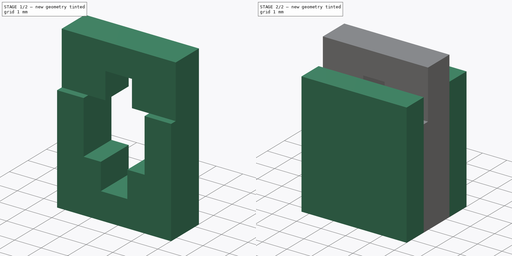
[diagram: build sequence overview — one tinted view per stage of 2, left to right]
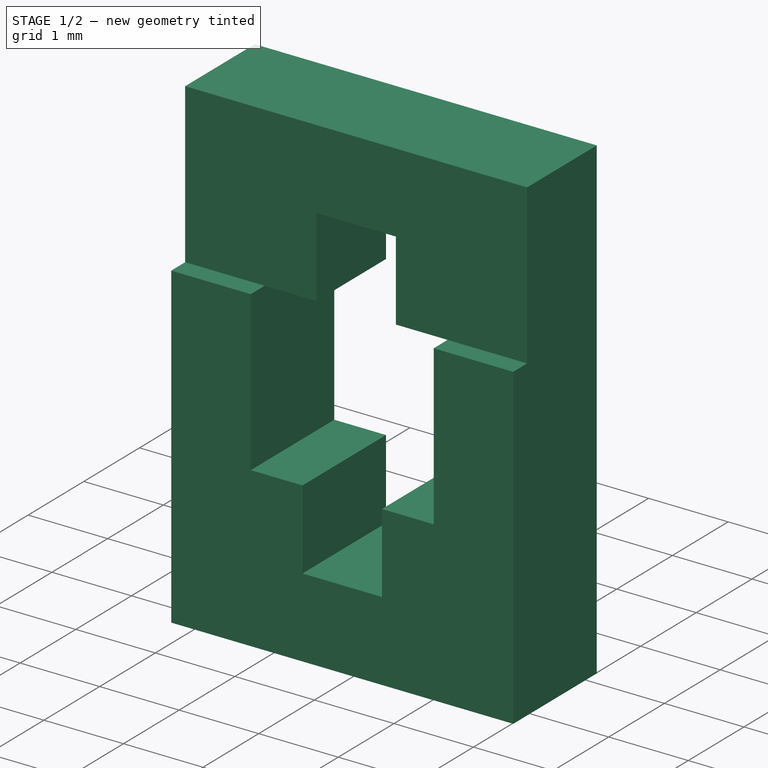
[diagram: stage 1 of 2 — iso view after this stage's code; geometry added in this stage tinted green]
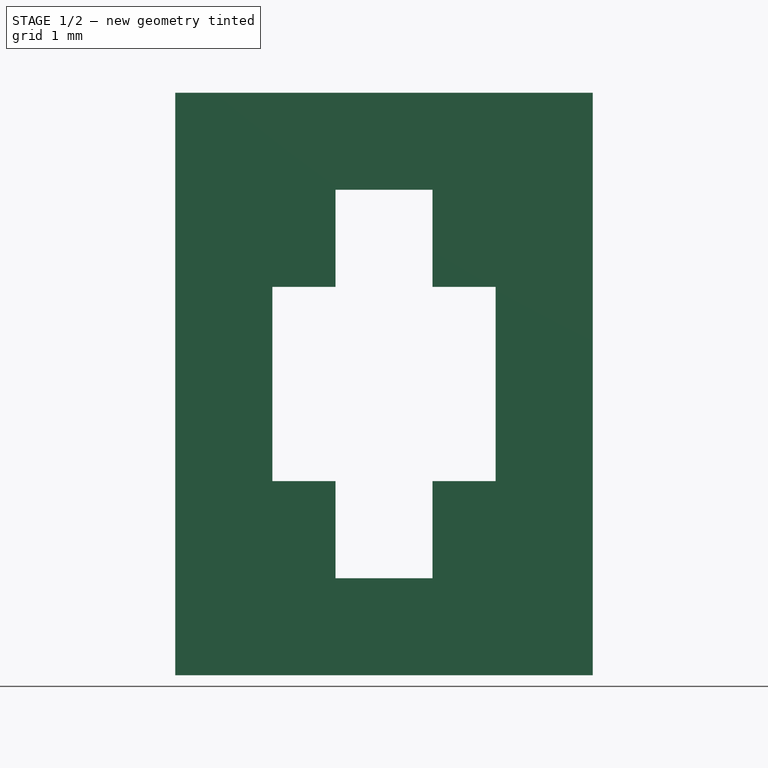
[diagram: stage 1 of 2 — front view after this stage's code; geometry added in this stage tinted green]
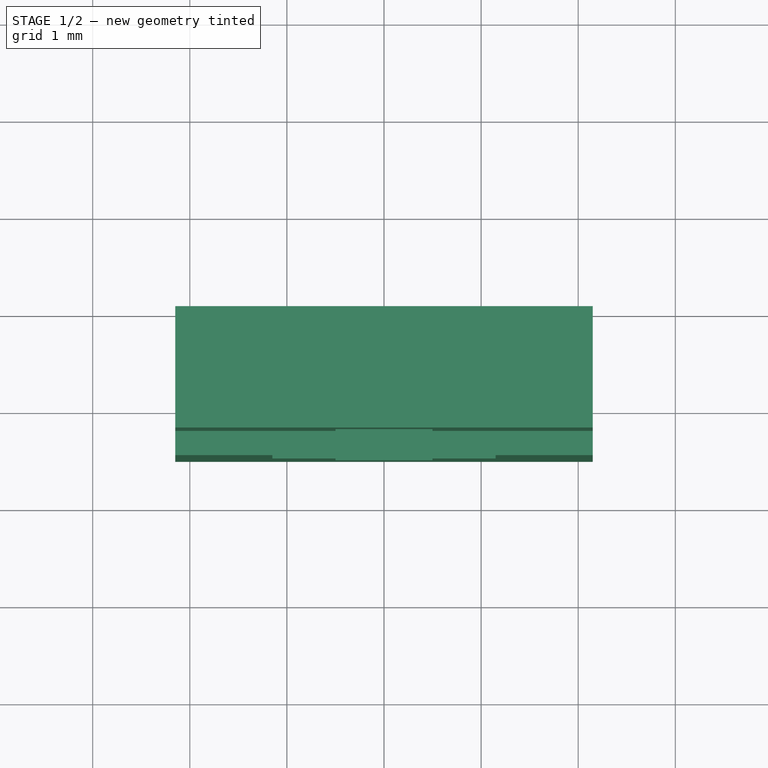
[diagram: stage 1 of 2 — top view after this stage's code; geometry added in this stage tinted green]
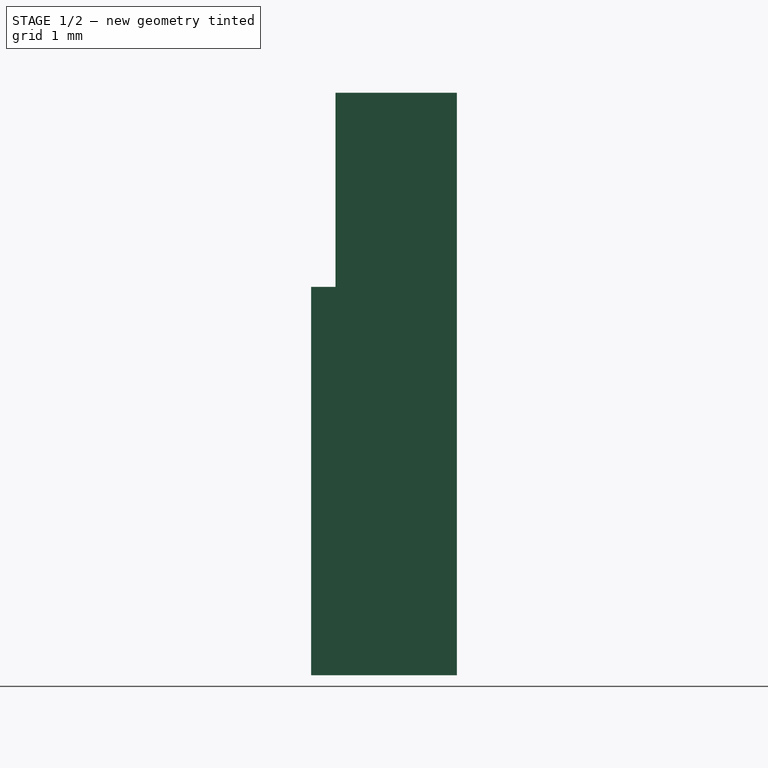
[diagram: stage 1 of 2 — right view after this stage's code; geometry added in this stage tinted green]
FCSTD DOCUMENT  (FreeCAD 0.20R29603 (Git))
Label: Miniarchive
License: All rights reserved
LicenseURL: http://en.wikipedia.org/wiki/All_rights_reserved
objects: Sketcher::SketchObject×4, PartDesign::Pad×4, PartDesign::Body×2
note: 14 computed .brp shape members not serialized (recipe doc carries the construction recipe); baked Part::Feature solids carry a one-line shape summary decoded from their .brp

FEATURE [Sketcher::SketchObject] Sketch
  FullyConstrained = true
  MapMode = 5
  Placement = pos=(0,0,0) rot=(1,0,0;1.5708rad)
  Support = -> [XZ_Plane]
  sketch-geometry (12):
    g0: LineSegment StartX=-2.15 StartY=4 StartZ=0 EndX=-2.15 EndY=0 EndZ=0
    g1: LineSegment StartX=-2.15 StartY=0 StartZ=0 EndX=2.15 EndY=0 EndZ=0
    g2: LineSegment StartX=2.15 StartY=0 StartZ=0 EndX=2.15 EndY=4 EndZ=0
    g3: LineSegment StartX=2.15 StartY=4 StartZ=0 EndX=1.15 EndY=4 EndZ=0
    g4: LineSegment StartX=1.15 StartY=4 StartZ=0 EndX=1.15 EndY=2 EndZ=0
    g5: LineSegment StartX=-1.15 StartY=2 StartZ=0 EndX=-1.15 EndY=4 EndZ=0
    g6: LineSegment StartX=-1.15 StartY=4 StartZ=0 EndX=-2.15 EndY=4 EndZ=0
    g7: LineSegment StartX=-1.15 StartY=2 StartZ=0 EndX=-0.5 EndY=2 EndZ=0
    g8: LineSegment StartX=-0.5 StartY=2 StartZ=0 EndX=-0.5 EndY=1 EndZ=0
    g9: LineSegment StartX=-0.5 StartY=1 StartZ=0 EndX=0.5 EndY=1 EndZ=0
    g10: LineSegment StartX=0.5 StartY=1 StartZ=0 EndX=0.5 EndY=2 EndZ=0
    g11: LineSegment StartX=0.5 StartY=2 StartZ=0 EndX=1.15 EndY=2 EndZ=0
  constraints (30):
    c: Coincident(g0,g1)
    c: Coincident(g1,g2)
    c: Coincident(g2,g3)
    c: Coincident(g3,g4)
    c: Coincident(g5,g6)
    c: Coincident(g6,g0)
    c: Coincident(g5,g7)
    c: Coincident(g7,g8)
    c: Coincident(g8,g9)
    c: Coincident(g9,g10)
    c: Coincident(g10,g11)
    c: Coincident(g11,g4)
    c: Horizontal(g7)
    c: Horizontal(g6)
    c: Vertical(g0)
    c: Vertical(g5)
    c: Vertical(g8)
    c: Symmetric(g5,g3,g-2)
    c: Symmetric(g0,g2,g-2)
    c: Symmetric(g5,g4,g-2)
    c: Symmetric(g7,g10,g-2)
    c: Symmetric(g8,g9,g-2)
    c: Symmetric(g0,g1,g-2)
    c: DistanceX(g6,g6) = 1
    c: DistanceX(g9,g9) = 1
    c: DistanceY(g5,g5) = 2
    c: DistanceY(g0,g0) = 4
    c: DistanceY(g10,g10) = 1
    c: PointOnObject(g0,g-1)
    c: DistanceX(g5,g3) = 2.3
FEATURE [PartDesign::Pad] Pad
  Direction = (0,-1,2e-16)
  Length = 1.5
  Length2 = 10
  Placement = pos=(0,0,0) rot=(1,0,0;1.5708rad)
  Profile = -> Sketch
  ReferenceAxis = -> Sketch [N_Axis]
  Type = 0
FEATURE [PartDesign::Body] Body
  Group = -> [Sketch,Pad,Sketch001,Pad001,Sketch002,Pad002]
  Origin = -> Origin
  Tip = -> Pad002
FEATURE [Sketcher::SketchObject] Sketch003
  FullyConstrained = true
  MapMode = 5
  Placement = pos=(0,0,0) rot=(1,0,0;1.5708rad)
  Support = -> [XZ_Plane001]
  sketch-geometry (8):
    g0: LineSegment StartX=-2.15 StartY=6 StartZ=0 EndX=-2.15 EndY=4 EndZ=0
    g1: LineSegment StartX=-2.15 StartY=4 StartZ=0 EndX=-0.5 EndY=4 EndZ=0
    g2: LineSegment StartX=-0.5 StartY=4 StartZ=0 EndX=-0.5 EndY=5 EndZ=0
    g3: LineSegment StartX=-0.5 StartY=5 StartZ=0 EndX=0.5 EndY=5 EndZ=0
    g4: LineSegment StartX=0.5 StartY=5 StartZ=0 EndX=0.5 EndY=4 EndZ=0
    g5: LineSegment StartX=0.5 StartY=4 StartZ=0 EndX=2.15 EndY=4 EndZ=0
    g6: LineSegment StartX=2.15 StartY=4 StartZ=0 EndX=2.15 EndY=6 EndZ=0
    g7: LineSegment StartX=2.15 StartY=6 StartZ=0 EndX=-2.15 EndY=6 EndZ=0
  constraints (20):
    c: Coincident(g0,g1)
    c: Horizontal(g1)
    c: Coincident(g1,g2)
    c: Vertical(g2)
    c: Coincident(g2,g3)
    c: Coincident(g3,g4)
    c: Coincident(g4,g5)
    c: Coincident(g5,g6)
    c: Coincident(g6,g7)
    c: Coincident(g7,g0)
    c: Vertical(g0)
    c: Symmetric(g0,g6,g-2)
    c: Symmetric(g0,g5,g-2)
    c: Symmetric(g1,g4,g-2)
    c: Symmetric(g2,g3,g-2)
    c: DistanceY(g2,g2) = 1
    c: DistanceX(g3,g3) = 1
    c: DistanceY(g2,g0) = 1
    c: DistanceX(g0,g5) = 4.3
    c: DistanceY(g0) = 6
FEATURE [PartDesign::Pad] Pad003
  Direction = (0,-1,2e-16)
  Length = 1.25
  Length2 = 10
  Placement = pos=(0,0,0) rot=(1,0,0;1.5708rad)
  Profile = -> Sketch003
  ReferenceAxis = -> Sketch003 [N_Axis]
  Type = 0
FEATURE [PartDesign::Body] Body001  label="Top"
  Group = -> [Sketch003,Pad003]
  Origin = -> Origin001
  Tip = -> Pad003
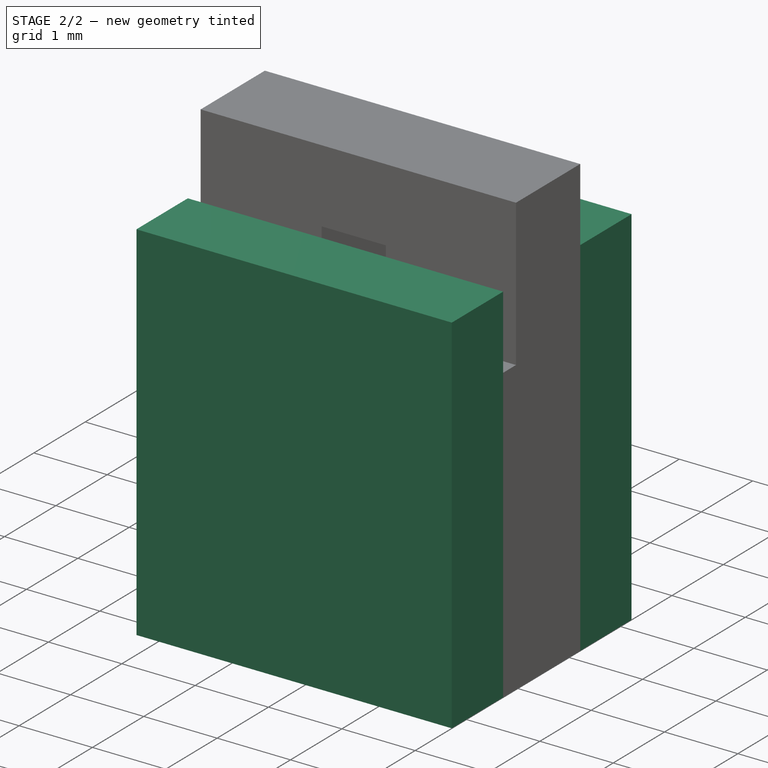
[diagram: stage 2 of 2 — iso view after this stage's code; geometry added in this stage tinted green]
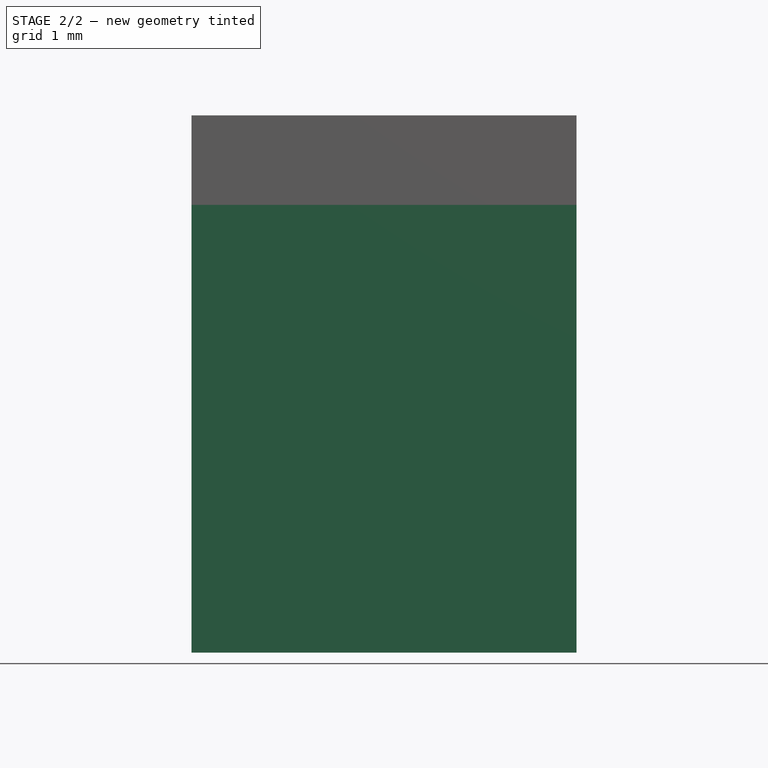
[diagram: stage 2 of 2 — front view after this stage's code; geometry added in this stage tinted green]
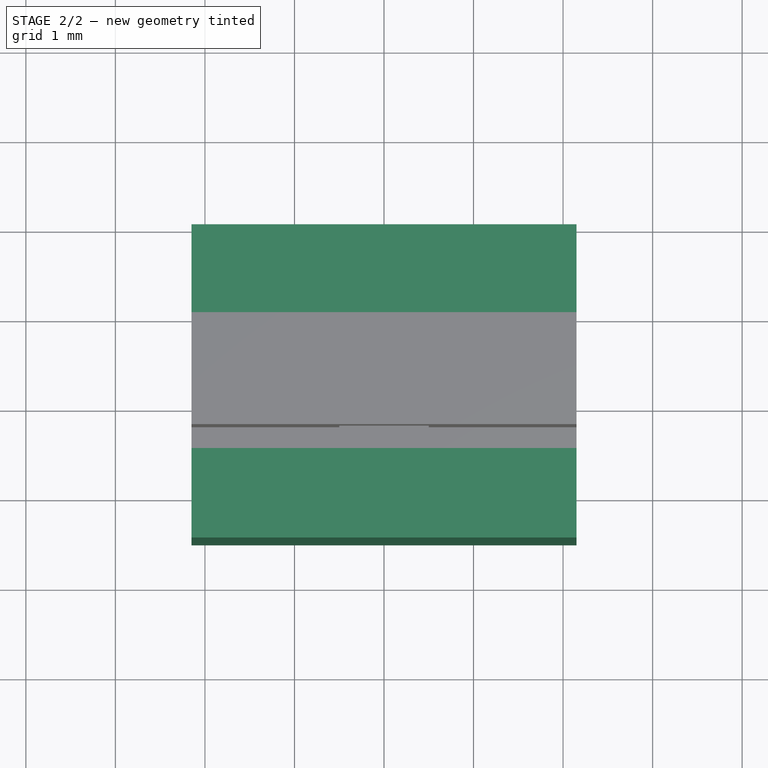
[diagram: stage 2 of 2 — top view after this stage's code; geometry added in this stage tinted green]
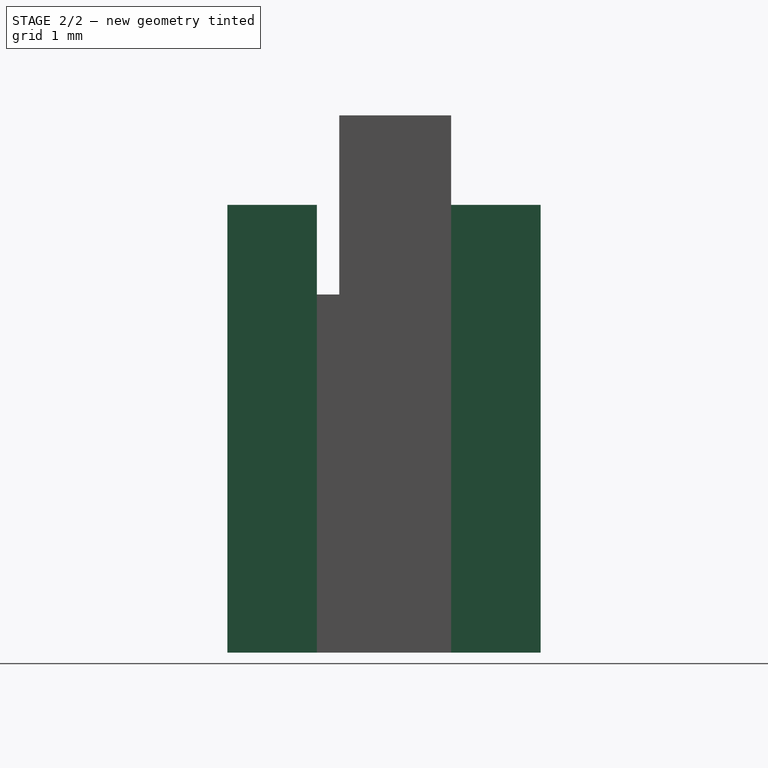
[diagram: stage 2 of 2 — right view after this stage's code; geometry added in this stage tinted green]
FEATURE [Sketcher::SketchObject] Sketch001
  ExternalGeometry = -> [Pad]
  FullyConstrained = true
  MapMode = 5
  Placement = pos=(0,-1.5,3e-16) rot=(1,0,0;1.5708rad)
  Support = -> [Pad]
  sketch-geometry (4):
    g0: LineSegment StartX=-2.15 StartY=5 StartZ=0 EndX=2.15 EndY=5 EndZ=0
    g1: LineSegment StartX=2.15 StartY=5 StartZ=0 EndX=2.15 EndY=0 EndZ=0
    g2: LineSegment StartX=2.15 StartY=0 StartZ=0 EndX=-2.15 EndY=0 EndZ=0
    g3: LineSegment StartX=-2.15 StartY=0 StartZ=0 EndX=-2.15 EndY=5 EndZ=0
  constraints (10):
    c: Coincident(g0,g1)
    c: Coincident(g1,g2)
    c: Coincident(g2,g3)
    c: Coincident(g3,g0)
    c: Coincident(g2,g-4)
    c: Coincident(g-3,g1)
    c: Vertical(g1)
    c: Vertical(g3)
    c: Horizontal(g0)
    c: DistanceY(g-4,g0) = 1
FEATURE [PartDesign::Pad] Pad001
  BaseFeature = -> Pad
  Direction = (0,-1,2e-16)
  Length = 1
  Length2 = 10
  Placement = pos=(0,0,0) rot=(1,0,0;1.5708rad)
  Profile = -> Sketch001
  ReferenceAxis = -> Sketch001 [N_Axis]
  Type = 0
FEATURE [Sketcher::SketchObject] Sketch002
  ExternalGeometry = -> [Pad001]
  FullyConstrained = true
  MapMode = 5
  Placement = pos=(0,0,0) rot=(-1,0,0;1.5708rad)
  Support = -> [Pad001]
  sketch-geometry (8):
    g0: LineSegment StartX=-2.15 StartY=0 StartZ=0 EndX=2.15 EndY=0 EndZ=0
    g1: LineSegment StartX=2.15 StartY=0 StartZ=0 EndX=2.15 EndY=-5 EndZ=0
    g2: LineSegment StartX=2.15 StartY=-5 StartZ=0 EndX=-2.15 EndY=-5 EndZ=0
    g3: LineSegment StartX=-2.15 StartY=-5 StartZ=0 EndX=-2.15 EndY=0 EndZ=0
    g4: LineSegment StartX=-0.5 StartY=-1 StartZ=0 EndX=0.5 EndY=-1 EndZ=0
    g5: LineSegment StartX=0.5 StartY=-1 StartZ=0 EndX=0.5 EndY=-4 EndZ=0
    g6: LineSegment StartX=0.5 StartY=-4 StartZ=0 EndX=-0.5 EndY=-4 EndZ=0
    g7: LineSegment StartX=-0.5 StartY=-4 StartZ=0 EndX=-0.5 EndY=-1 EndZ=0
  constraints (18):
    c: Coincident(g-5,g0)
    c: Coincident(g0,g-6)
    c: Coincident(g0,g1)
    c: Coincident(g1,g-3)
    c: Coincident(g2,g-4)
    c: Coincident(g2,g3)
    c: Coincident(g3,g0)
    c: Coincident(g2,g1)
    c: Coincident(g4,g-7)
    c: Coincident(g4,g-7)
    c: Coincident(g5,g4)
    c: Vertical(g5)
    c: Coincident(g6,g5)
    c: Horizontal(g6)
    c: Coincident(g7,g4)
    c: Vertical(g7)
    c: Coincident(g6,g7)
    c: Horizontal(g5,g-6)
FEATURE [PartDesign::Pad] Pad002
  BaseFeature = -> Pad001
  Direction = (0,1,-2e-16)
  Length = 1
  Length2 = 10
  Placement = pos=(0,0,0) rot=(1,0,0;1.5708rad)
  Profile = -> Sketch002
  ReferenceAxis = -> Sketch002 [N_Axis]
  Type = 0
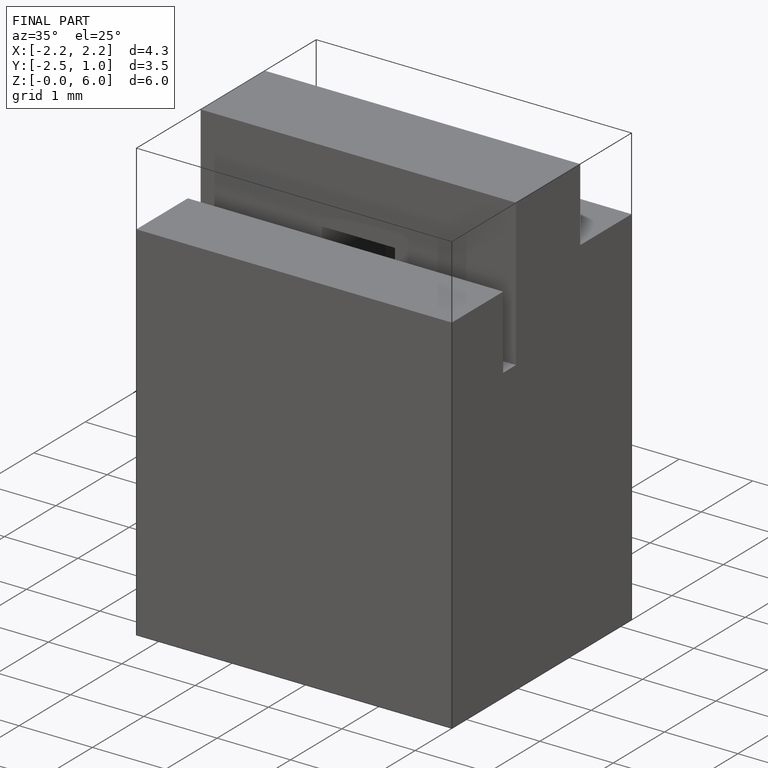
[diagram: finished part — iso view with bounding-box wireframe]
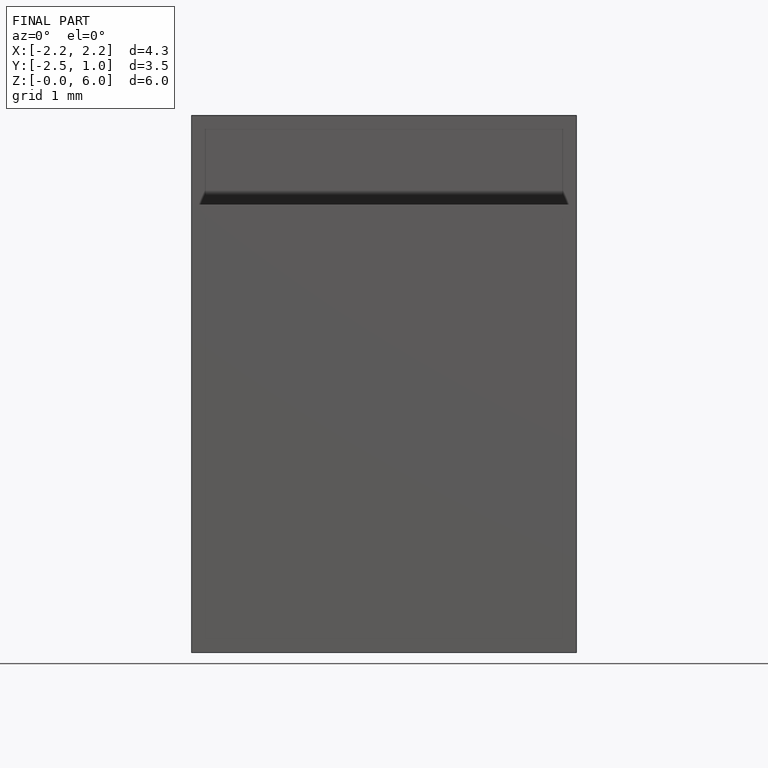
[diagram: finished part — front view with bounding-box wireframe]
